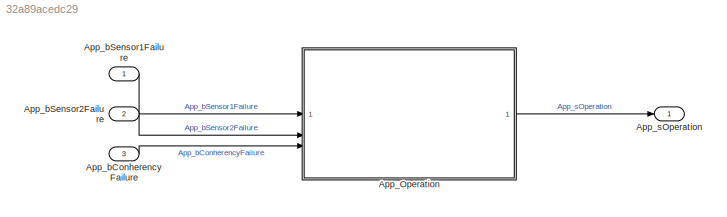
MODEL slx_32a89acedc29
KIND model
CONFIG AbsTol = auto
CONFIG EnableMultiTasking = on
CONFIG FixedStep = 0.01
CONFIG InitFcn = Init
CONFIG MaxStep = auto
CONFIG MinStep = auto
CONFIG RelTol = 1e-3
CONFIG SampleTimeConstraint = Unconstrained
CONFIG SolverName = FixedStepAuto
CONFIG StartTime = 0.0
CONFIG StopTime = 10.0
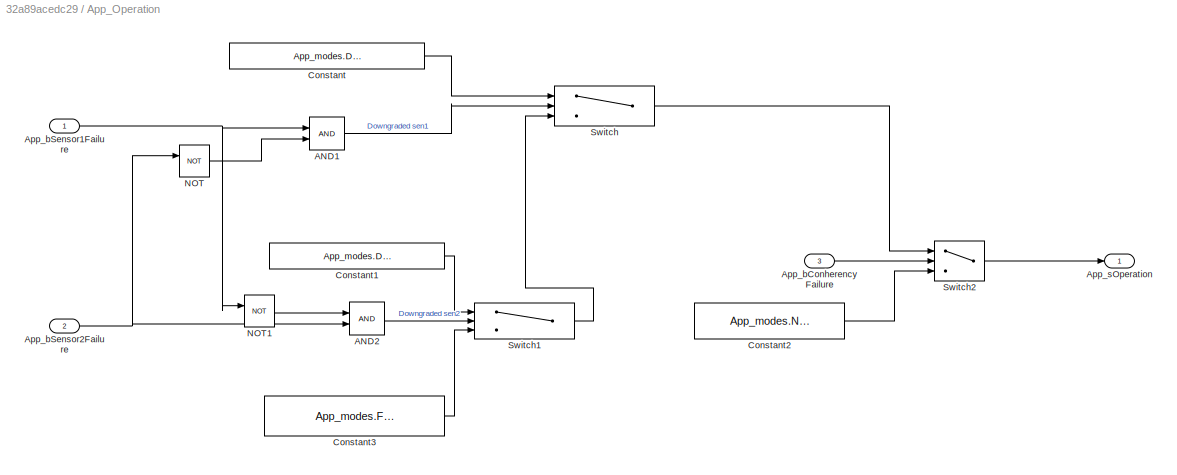
BLOCK [SubSystem] App_Operation
BLOCK [Logic] App_Operation/AND1
  AllPortsSameDT = off
  OutDataTypeStr = boolean
BLOCK [Logic] App_Operation/AND2
  AllPortsSameDT = off
  OutDataTypeStr = boolean
BLOCK [Inport] App_Operation/App_bConherencyFailure
  Port = 3
BLOCK [Inport] App_Operation/App_bSensor1Failure
BLOCK [Inport] App_Operation/App_bSensor2Failure
  Port = 2
BLOCK [Outport] App_Operation/App_sOperation
  LockScale = on
  OutDataTypeStr = Enum: App_modes
BLOCK [Constant] App_Operation/Constant
  OutDataTypeStr = Enum: App_modes
  Value = App_modes.Downgraded_sen_2
BLOCK [Constant] App_Operation/Constant1
  OutDataTypeStr = Enum: App_modes
  Value = App_modes.Downgraded_sen_1
BLOCK [Constant] App_Operation/Constant2
  OutDataTypeStr = Enum: App_modes
  Value = App_modes.Normal
BLOCK [Constant] App_Operation/Constant3
  OutDataTypeStr = Enum: App_modes
  Value = App_modes.Failure
BLOCK [Logic] App_Operation/NOT
  AllPortsSameDT = off
  IconShape = distinctive
  Operator = NOT
  OutDataTypeStr = boolean
BLOCK [Logic] App_Operation/NOT1
  AllPortsSameDT = off
  IconShape = distinctive
  Operator = NOT
  OutDataTypeStr = boolean
BLOCK [Switch] App_Operation/Switch
  Criteria = u2 ~= 0
  InputSameDT = off
  SaturateOnIntegerOverflow = off
BLOCK [Switch] App_Operation/Switch1
  Criteria = u2 ~= 0
  InputSameDT = off
  SaturateOnIntegerOverflow = off
BLOCK [Switch] App_Operation/Switch2
  Criteria = u2 ~= 0
  InputSameDT = off
  SaturateOnIntegerOverflow = off
BLOCK [Inport] App_bConherencyFailure
  Port = 3
BLOCK [Inport] App_bSensor1Failure
BLOCK [Inport] App_bSensor2Failure
  Port = 2
BLOCK [Outport] App_sOperation
LINE App_Operation/AND1:1 -> App_Operation/Switch:2
LINE App_Operation/AND2:1 -> App_Operation/Switch1:2
LINE App_Operation/App_bConherencyFailure:1 -> App_Operation/Switch2:2
NET App_Operation/App_bSensor1Failure:1 -> App_Operation/AND1:1, App_Operation/NOT1:1
NET App_Operation/App_bSensor2Failure:1 -> App_Operation/AND2:2, App_Operation/NOT:1
LINE App_Operation/Constant1:1 -> App_Operation/Switch1:1
LINE App_Operation/Constant2:1 -> App_Operation/Switch2:3
LINE App_Operation/Constant3:1 -> App_Operation/Switch1:3
LINE App_Operation/Constant:1 -> App_Operation/Switch:1
LINE App_Operation/NOT1:1 -> App_Operation/AND2:1
LINE App_Operation/NOT:1 -> App_Operation/AND1:2
LINE App_Operation/Switch1:1 -> App_Operation/Switch:3
LINE App_Operation/Switch2:1 -> App_Operation/App_sOperation:1
LINE App_Operation/Switch:1 -> App_Operation/Switch2:1
LINE App_Operation:1 -> App_sOperation:1
LINE App_bConherencyFailure:1 -> App_Operation:3
LINE App_bSensor1Failure:1 -> App_Operation:1
LINE App_bSensor2Failure:1 -> App_Operation:2
note: NET lines group one-source signal fan-out (src -> all destinations, sorted); 1:1 wires keep LINE
